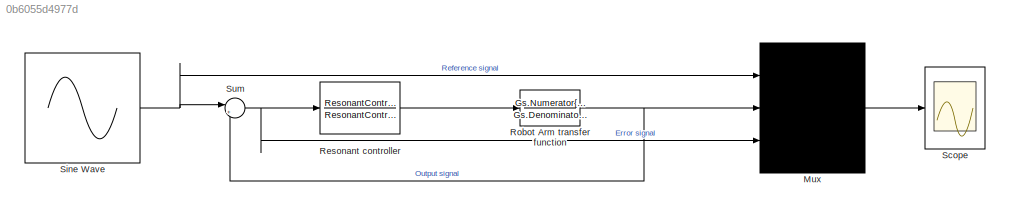
MODEL slx_0b6055d4977d
KIND model
CONFIG AbsTol = auto
CONFIG EnableMultiTasking = off
CONFIG FixedStep = auto
CONFIG MaxStep = auto
CONFIG MinStep = auto
CONFIG RelTol = 1e-3
CONFIG SampleTimeConstraint = Unconstrained
CONFIG Solver = VariableStepAuto
CONFIG SolverName = VariableStepAuto
CONFIG StartTime = 0.0
CONFIG StopTime = simulation_time
BLOCK [Mux] Mux
  DisplayOption = signals
  Inputs = 3
  Ports = [3, 1]
BLOCK [TransferFcn] Resonant controller
  Denominator = ResonantController.Denominator{1,1}
  Numerator = ResonantController.Numerator{1,1}
BLOCK [TransferFcn] Robot Arm transfer function
  Denominator = Gs.Denominator{1,1}
  Numerator = Gs.Numerator{1,1}
BLOCK [Scope] Scope
  Floating = off
  NumInputPorts = 1
  Ports = [1]
  ScopeSpecificationString = Simulink.scopes.TimeScopeBlockCfg('CurrentConfiguration', extmgr.ConfigurationSet(extmgr.Configuration('Core','General UI',true),extmgr.Configuration('Core','Source UI',true),extmgr.Configuration('Sources','WiredSimulink',true),extmgr.Configuration('Visuals','Time Domain',true,'SerializedDisplays',{struct('MinYLimReal','-3.8649','MaxYLimReal','3.94989','YLabelReal','','MinYLimMag','0.00000','MaxYL...<+1418ch>
BLOCK [Sin] Sine Wave
  Amplitude = Rm
  Frequency = w0
  Ports = [0, 1]
  SampleTime = sampling_time
BLOCK [Sum] Sum
  IconShape = round
  InputSameDT = off
  Inputs = |+-
  OutDataTypeStr = Inherit: Inherit via internal rule
  Ports = [2, 1]
  SaturateOnIntegerOverflow = off
LINE Mux:1 -> Scope:1
LINE Resonant controller:1 -> Robot Arm transfer function:1
NET Robot Arm transfer function:1 -> Mux:2, Sum:2
NET Sine Wave:1 -> Mux:1, Sum:1
NET Sum:1 -> Mux:3, Resonant controller:1
note: NET lines group one-source signal fan-out (src -> all destinations, sorted); 1:1 wires keep LINE
